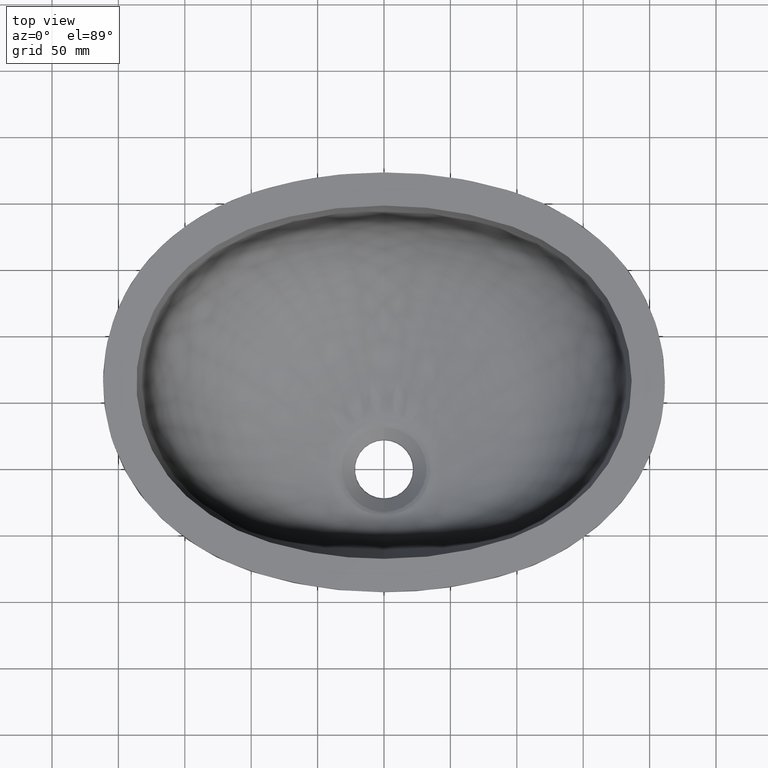
[diagram: clean part render]
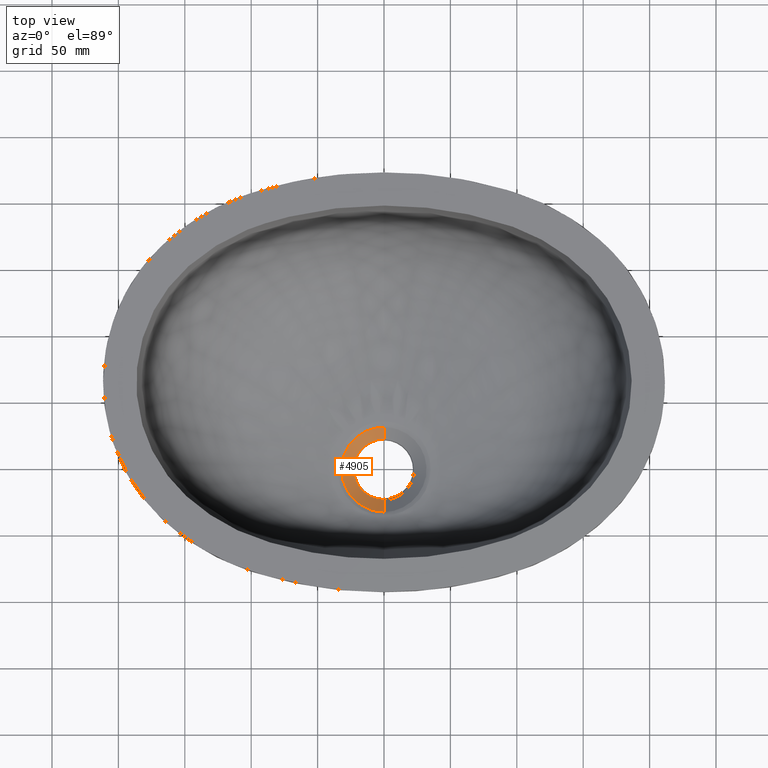
[diagram: same view with one face highlighted and labeled with its STEP entity id]
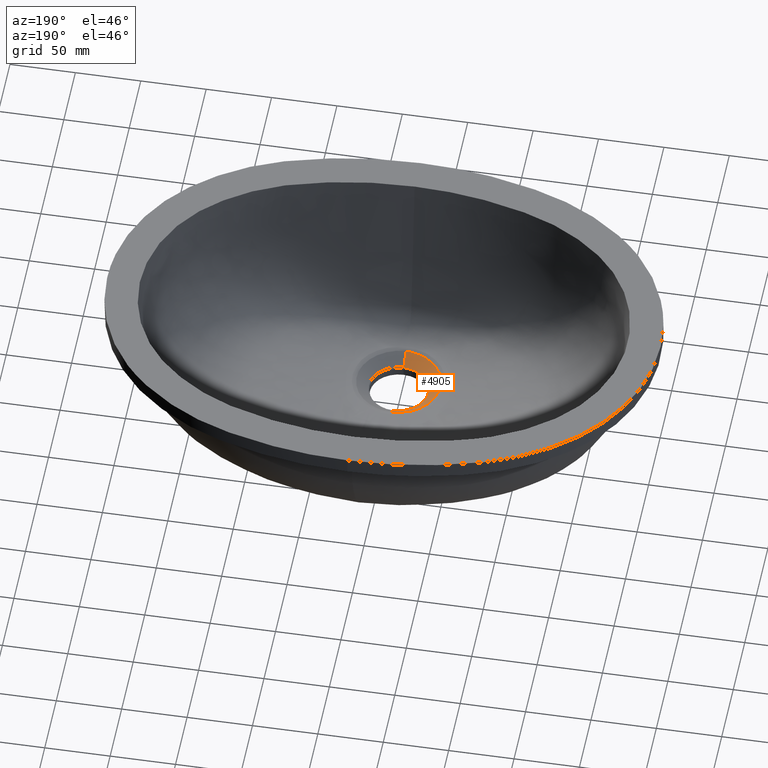
[diagram: same view with one face highlighted and labeled with its STEP entity id]
A machine part, top view. The second image highlights one B-rep face of the part: STEP entity #4905.
A second angle (auxiliary view) of the same face is appended — the face is thin or edge-on in the first view.
In plain terms, the highlighted conical surface has half-angle 50 deg.
Its self-contained STEP definition (entity closure, byte-faithful):
#54 = CARTESIAN_POINT ( 'NONE',  ( -6.938893903907230000E-015, 0.0000000000000000000, -1.828398543679554700E-012 ) ) ;
#90 = ORIENTED_EDGE ( 'NONE', *, *, #7063, .T. ) ;
#206 = CARTESIAN_POINT ( 'NONE',  ( -2.109649409561923600, 31.51542501583288200, -1.620627382716023100 ) ) ;
#388 = CARTESIAN_POINT ( 'NONE',  ( -8.275371494004270200, 30.50440899155817600, -1.602906719404920700 ) ) ;
#424 = CARTESIAN_POINT ( 'NONE',  ( -21.88494787962924800, 23.01107290912825900, -1.466814637574190600 ) ) ;
#435 = VERTEX_POINT ( 'NONE', #10856 ) ;
#460 = CARTESIAN_POINT ( 'NONE',  ( -9.775005154887274700, 30.05386302163814300, -1.594913508392926400 ) ) ;
#495 = CARTESIAN_POINT ( 'NONE',  ( -31.81387400934333000, 3.404805198265934400, -1.265955992205227000 ) ) ;
#574 = VERTEX_POINT ( 'NONE', #6546 ) ;
#600 = DIRECTION ( 'NONE',  ( -0.0000000000000000000, -0.0000000000000000000, -1.000000000000000000 ) ) ;
#668 = CARTESIAN_POINT ( 'NONE',  ( -23.26489309454857600, -22.05111682882741800, -1.227231275469495600 ) ) ;
#706 = CARTESIAN_POINT ( 'NONE',  ( -21.03330925352822700, -24.28807393695931400, -1.207911389057615200 ) ) ;
#718 = EDGE_CURVE ( 'NONE', #9072, #435, #4503, .T. ) ;
#1249 = CARTESIAN_POINT ( 'NONE',  ( -11.26142929296325900, 29.54080758133595800, -1.585743046299981100 ) ) ;
#1252 = VERTEX_POINT ( 'NONE', #2511 ) ;
#1288 = CARTESIAN_POINT ( 'NONE',  ( -29.08015322041551800, -13.41731756005813400, -1.251037416019507900 ) ) ;
#1321 = CARTESIAN_POINT ( 'NONE',  ( -31.98867645020225200, -1.274874820741820300, -1.261026218859765000 ) ) ;
#1532 = CARTESIAN_POINT ( 'NONE',  ( -10.27882567431589700, -30.60994264346175700, -1.072497628949389700 ) ) ;
#1626 = CARTESIAN_POINT ( 'NONE',  ( -2.200514618946787000E-013, 33.50000000000046200, -1.828398543679554700E-012 ) ) ;
#1683 = EDGE_CURVE ( 'NONE', #7693, #1252, #2073, .T. ) ;
#1815 = DIRECTION ( 'NONE',  ( 1.000000000000000000, 0.0000000000000000000, 0.0000000000000000000 ) ) ;
#2001 = CARTESIAN_POINT ( 'NONE',  ( -6.938893903907230000E-015, 0.0000000000000000000, -9.059599703896687100 ) ) ;
#2073 = CIRCLE ( 'NONE', #4552, 22.70318950541828300 ) ;
#2123 = CARTESIAN_POINT ( 'NONE',  ( -32.00125112784555600, 0.8054739973162504700, -1.263279819740308800 ) ) ;
#2158 = CARTESIAN_POINT ( 'NONE',  ( -27.08099907643753200, -17.10326225909419400, -1.247904082425175900 ) ) ;
#2188 = CARTESIAN_POINT ( 'NONE',  ( -31.55486222382086900, -5.442753161718448100, -1.255606968406731900 ) ) ;
#2294 = CARTESIAN_POINT ( 'NONE',  ( -6.938893903907230000E-015, 0.0000000000000000000, -9.059599703896687100 ) ) ;
#2400 = CARTESIAN_POINT ( 'NONE',  ( -13.16456185642169900, -29.37730496481682600, -1.111712383027025900 ) ) ;
#2456 = CARTESIAN_POINT ( 'NONE',  ( -0.0000000000000000000, -33.50000000000046200, -1.828398543679554700E-012 ) ) ;
#2511 = CARTESIAN_POINT ( 'NONE',  ( 0.0000000000000000000, 22.70318950541828300, -9.059599703896687100 ) ) ;
#2711 = CONICAL_SURFACE ( 'NONE', #4523, 33.50000000000046200, 0.8726646259971664300 ) ;
#2974 = CARTESIAN_POINT ( 'NONE',  ( -27.20432426501840300, 16.62157029366239100, -1.362740597306280500 ) ) ;
#3012 = CARTESIAN_POINT ( 'NONE',  ( -25.29480736624384500, -19.66194457280366900, -1.241198418846653200 ) ) ;
#3047 = CARTESIAN_POINT ( 'NONE',  ( -30.92181252626056300, -8.526040240032058300, -1.252769007432076500 ) ) ;
#3150 = DIRECTION ( 'NONE',  ( -1.000000000000000000, 0.0000000000000000000, 0.0000000000000000000 ) ) ;
#3842 = CARTESIAN_POINT ( 'NONE',  ( -24.12562097579218400, 20.81855954092332100, -1.428385966267395400 ) ) ;
#3877 = CARTESIAN_POINT ( 'NONE',  ( -28.01293898645624100, 15.26567056839556900, -1.344143519812184100 ) ) ;
#3911 = CARTESIAN_POINT ( 'NONE',  ( -28.62128882756418200, -14.37121759513844100, -1.250610489236083600 ) ) ;
#3920 = ORIENTED_EDGE ( 'NONE', *, *, #8012, .T. ) ;
#4006 = CARTESIAN_POINT ( 'NONE',  ( -7.265130904680919600, 30.75515706706404400, -1.607310359710026200 ) ) ;
#4043 = FACE_OUTER_BOUND ( 'NONE', #4854, .T. ) ;
#4124 = CARTESIAN_POINT ( 'NONE',  ( -23.96941087440661600, -21.27283160135616700, -1.232726711036592000 ) ) ;
#4142 = DIRECTION ( 'NONE',  ( 5.349259755748792000E-015, -0.7660444431189792300, -0.6427876096865379200 ) ) ;
#4163 = CARTESIAN_POINT ( 'NONE',  ( 0.0000000000000000000, -32.32585722978699700, -0.9852227654374125000 ) ) ;
#4251 = CARTESIAN_POINT ( 'NONE',  ( -22.70318950541829000, 0.0000000000000000000, -9.059599703896687100 ) ) ;
#4503 = B_SPLINE_CURVE_WITH_KNOTS ( 'NONE', 3,
 ( #4511, #10472, #206, #7410, #9141, #4006, #388, #460, #9048, #1249, #6417, #8975, #9868, #5511, #6381, #9011, #7243, #424, #8112, #3842, #10762, #9903, #2974, #6451, #3877, #9832, #4693, #5616, #4733, #4768, #10728, #5583, #495, #5551, #2123, #1321, #8179, #7315, #2188, #3047, #10693, #1288, #3911, #7283, #2158, #8148, #3012, #4124, #668, #706, #11015, #5874, #7608, #5835, #2400, #1532, #6663, #6737, #10976, #10195, #5055, #4163 ),
 .UNSPECIFIED., .F., .F.,
 ( 4, 2, 2, 2, 2, 2, 2, 2, 2, 2, 2, 2, 2, 2, 2, 2, 2, 2, 2, 2, 2, 2, 2, 2, 2, 2, 2, 2, 2, 2, 4 ),
 ( 0.0000000000000000000, 0.003162812163656551100, 0.006325624327313102100, 0.009488436490969653200, 0.01106984257279792700, 0.01265124865462620100, 0.01897687298193930300, 0.02213968514559585400, 0.02372109122742413500, 0.02530249730925241200, 0.03162812163656553200, 0.03320952771839380500, 0.03479093380022207900, 0.03795374596387862000, 0.04427937029119169400, 0.04586077637301996800, 0.04744218245484823500, 0.05060499461850476900, 0.05376780678216131600, 0.05693061894581786400, 0.06325624327313093800, 0.06641905543678748600, 0.06958186760044403300, 0.07274467976410058100, 0.07590749192775712900, 0.08223311625507023800, 0.08539592841872678500, 0.08855874058238333300, 0.09488436490969642800, 0.09804717707335297600, 0.1012099892370095000 ),
 .UNSPECIFIED. ) ;
#4511 = CARTESIAN_POINT ( 'NONE',  ( -2.065569303188509800E-013, 31.56750627223804500, -1.621554774219669200 ) ) ;
#4523 = AXIS2_PLACEMENT_3D ( 'NONE', #54, #6076, #1815 ) ;
#4552 = AXIS2_PLACEMENT_3D ( 'NONE', #2001, #7924, #9646 ) ;
#4693 = CARTESIAN_POINT ( 'NONE',  ( -29.21195956155268900, 12.93716223754881500, -1.316045540946650500 ) ) ;
#4733 = CARTESIAN_POINT ( 'NONE',  ( -31.01516482638490800, 8.065247618159828500, -1.277453100096435500 ) ) ;
#4768 = CARTESIAN_POINT ( 'NONE',  ( -31.51721490819176100, 5.484943605202555100, -1.269887286755518000 ) ) ;
#4854 = EDGE_LOOP ( 'NONE', ( #9277, #11028, #90, #3920, #5287 ) ) ;
#4905 = ADVANCED_FACE ( 'NONE', ( #4043 ), #2711, .F. ) ;
#5055 = CARTESIAN_POINT ( 'NONE',  ( -1.055176277041372600, -32.32585625125236100, -0.9852235865254575000 ) ) ;
#5253 = VECTOR ( 'NONE', #10026, 1000.000000000000000 ) ;
#5287 = ORIENTED_EDGE ( 'NONE', *, *, #1683, .T. ) ;
#5511 = CARTESIAN_POINT ( 'NONE',  ( -18.63246996177105100, 25.66064582195468800, -1.514811059056228700 ) ) ;
#5512 = LINE ( 'NONE', #2456, #5253 ) ;
#5551 = CARTESIAN_POINT ( 'NONE',  ( -31.95733937905943700, 1.845375727997705900, -1.264064842819741900 ) ) ;
#5583 = CARTESIAN_POINT ( 'NONE',  ( -31.75308937103124400, 3.924544330214949600, -1.266711357674398000 ) ) ;
#5616 = CARTESIAN_POINT ( 'NONE',  ( -30.41206584855313000, 10.05671458701371900, -1.288768150575585200 ) ) ;
#5835 = CARTESIAN_POINT ( 'NONE',  ( -14.11657267137073100, -28.91473973566279900, -1.124695534272660300 ) ) ;
#5874 = CARTESIAN_POINT ( 'NONE',  ( -16.84435394606471100, -27.36545502308263500, -1.160248655334400700 ) ) ;
#6076 = DIRECTION ( 'NONE',  ( 0.0000000000000000000, 0.0000000000000000000, 1.000000000000000000 ) ) ;
#6381 = CARTESIAN_POINT ( 'NONE',  ( -19.47513236667239400, 25.04459221656456000, -1.503490848790471900 ) ) ;
#6417 = CARTESIAN_POINT ( 'NONE',  ( -11.75467662349243400, 29.35239585435124400, -1.582354749586083900 ) ) ;
#6451 = CARTESIAN_POINT ( 'NONE',  ( -27.74986656509694400, 15.72405252193057700, -1.350251970331692600 ) ) ;
#6546 = CARTESIAN_POINT ( 'NONE',  ( 0.0000000000000000000, -22.70318950541828300, -9.059599703896687100 ) ) ;
#6663 = CARTESIAN_POINT ( 'NONE',  ( -8.298301920628192700, -31.23810516955867600, -1.045256118578774300 ) ) ;
#6737 = CARTESIAN_POINT ( 'NONE',  ( -5.240194173757788400, -31.88258046482493700, -1.012330346084585200 ) ) ;
#7063 = EDGE_CURVE ( 'NONE', #435, #574, #5512, .T. ) ;
#7243 = CARTESIAN_POINT ( 'NONE',  ( -21.10146525812699600, 23.71162511466226200, -1.479336170322443700 ) ) ;
#7271 = EDGE_CURVE ( 'NONE', #9072, #1252, #11005, .T. ) ;
#7283 = CARTESIAN_POINT ( 'NONE',  ( -27.62232389206761600, -16.21224606054078200, -1.249042540949697500 ) ) ;
#7315 = CARTESIAN_POINT ( 'NONE',  ( -31.71590272856745300, -4.396778529799827400, -1.256875030681174500 ) ) ;
#7378 = AXIS2_PLACEMENT_3D ( 'NONE', #2294, #600, #3150 ) ;
#7410 = CARTESIAN_POINT ( 'NONE',  ( -4.192852877674308600, 31.31074689517304000, -1.617035953976689200 ) ) ;
#7608 = CARTESIAN_POINT ( 'NONE',  ( -15.95483119222705600, -27.90923578307642900, -1.148941930797569500 ) ) ;
#7693 = VERTEX_POINT ( 'NONE', #4251 ) ;
#7924 = DIRECTION ( 'NONE',  ( -0.0000000000000000000, -0.0000000000000000000, -1.000000000000000000 ) ) ;
#8012 = EDGE_CURVE ( 'NONE', #574, #7693, #9801, .T. ) ;
#8112 = CARTESIAN_POINT ( 'NONE',  ( -22.26663738503464500, 22.65247748659021800, -1.460461733593547000 ) ) ;
#8148 = CARTESIAN_POINT ( 'NONE',  ( -25.91723467460636200, -18.82810721780856200, -1.243991222838108300 ) ) ;
#8179 = CARTESIAN_POINT ( 'NONE',  ( -31.93215807476512700, -2.315322117845534300, -1.259585168811844200 ) ) ;
#8321 = VECTOR ( 'NONE', #4142, 1000.000000000000000 ) ;
#8975 = CARTESIAN_POINT ( 'NONE',  ( -14.18698058463162000, 28.35438899754870300, -1.564322598841530600 ) ) ;
#9011 = CARTESIAN_POINT ( 'NONE',  ( -20.69913104755947900, 24.05392489824124900, -1.485510867652917800 ) ) ;
#9048 = CARTESIAN_POINT ( 'NONE',  ( -10.27225734391609000, 29.89125579259355100, -1.592017202388304800 ) ) ;
#9072 = VERTEX_POINT ( 'NONE', #9159 ) ;
#9141 = CARTESIAN_POINT ( 'NONE',  ( -5.223871596908328900, 31.15832603698043400, -1.614374058735124700 ) ) ;
#9159 = CARTESIAN_POINT ( 'NONE',  ( -2.065569303188509800E-013, 31.56750627223804500, -1.621554774219669200 ) ) ;
#9277 = ORIENTED_EDGE ( 'NONE', *, *, #7271, .F. ) ;
#9646 = DIRECTION ( 'NONE',  ( -1.000000000000000000, 0.0000000000000000000, 0.0000000000000000000 ) ) ;
#9801 = CIRCLE ( 'NONE', #7378, 22.70318950541828300 ) ;
#9832 = CARTESIAN_POINT ( 'NONE',  ( -28.76253944049372200, 13.87946970451435800, -1.326652936051380100 ) ) ;
#9868 = CARTESIAN_POINT ( 'NONE',  ( -16.02683862728377300, 27.37954578502806100, -1.546415176570631800 ) ) ;
#9903 = CARTESIAN_POINT ( 'NONE',  ( -26.92130151719062100, 17.06184059956613600, -1.369133627398479800 ) ) ;
#10026 = DIRECTION ( 'NONE',  ( 0.0000000000000000000, 0.7660444431189792300, -0.6427876096865379200 ) ) ;
#10195 = CARTESIAN_POINT ( 'NONE',  ( -2.107280363902456000, -32.26963582366666800, -0.9891676534819607800 ) ) ;
#10472 = CARTESIAN_POINT ( 'NONE',  ( -1.054521086763317900, 31.56750627339671700, -1.621554773247422000 ) ) ;
#10693 = CARTESIAN_POINT ( 'NONE',  ( -30.30233018874715300, -10.51942831114292800, -1.252181620344043900 ) ) ;
#10728 = CARTESIAN_POINT ( 'NONE',  ( -31.60491999085495600, 4.963877277754226800, -1.268674562102183300 ) ) ;
#10762 = CARTESIAN_POINT ( 'NONE',  ( -25.45614281734796300, 19.22175867418310300, -1.401512190080392600 ) ) ;
#10856 = CARTESIAN_POINT ( 'NONE',  ( 0.0000000000000000000, -32.32585722978699700, -0.9852227654374125000 ) ) ;
#10976 = CARTESIAN_POINT ( 'NONE',  ( -4.205495378918286100, -32.04739703916011000, -1.002777111148256900 ) ) ;
#11005 = LINE ( 'NONE', #1626, #8321 ) ;
#11015 = CARTESIAN_POINT ( 'NONE',  ( -19.42642350853365200, -25.61423365648576600, -1.191221438160458400 ) ) ;
#11028 = ORIENTED_EDGE ( 'NONE', *, *, #718, .T. ) ;